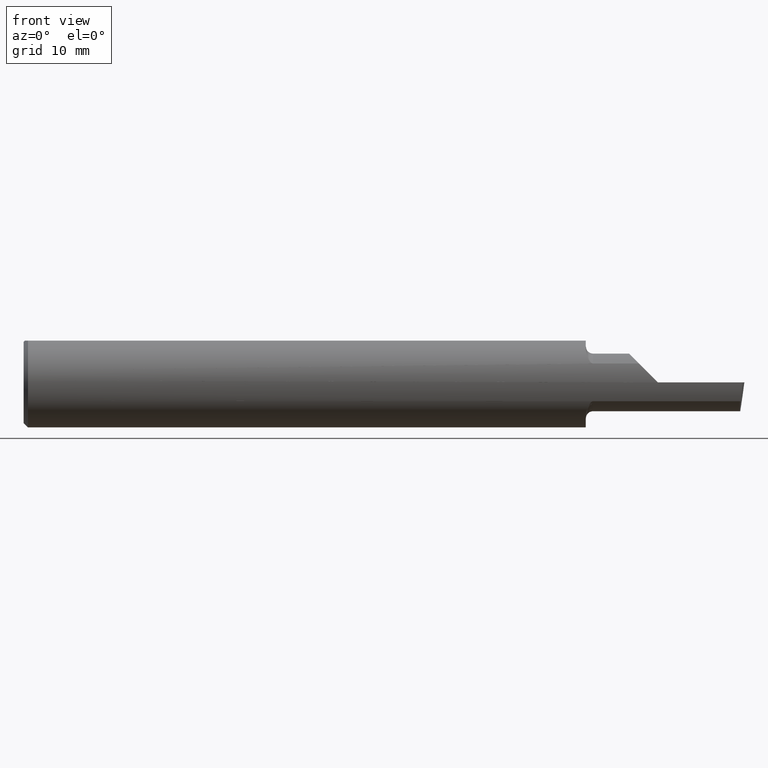
[diagram: clean part render]
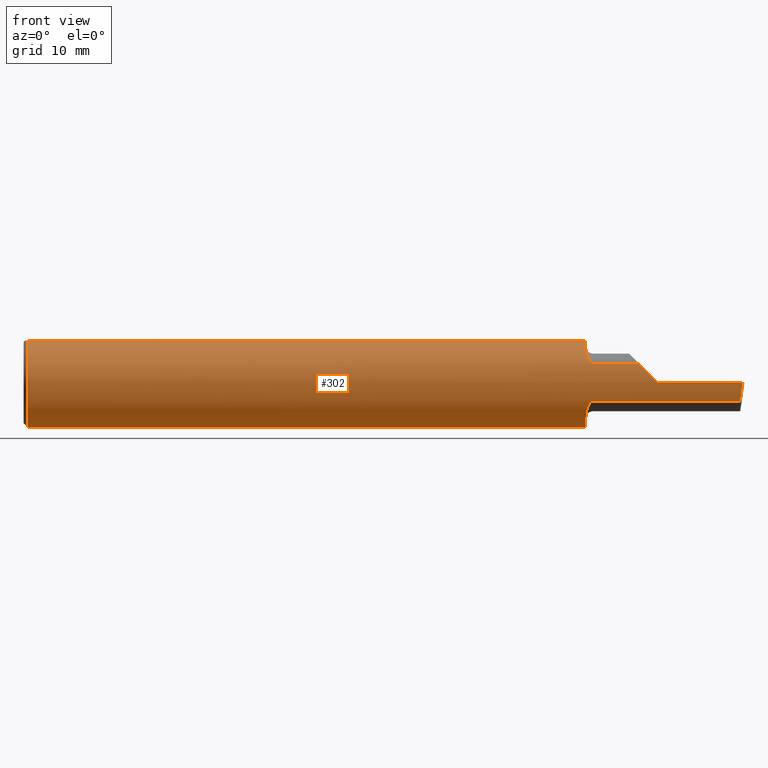
[diagram: same view with one face highlighted and labeled with its STEP entity id]
A machine part, front view. The second image highlights one B-rep face of the part: STEP entity #302.
In plain terms, the highlighted cylindrical surface (partial cylindrical patch) has radius 3.9649 mm, axis along (-1, -0, -0).
Its self-contained STEP definition (entity closure, byte-faithful):
#1 = CARTESIAN_POINT ( 'NONE',  ( 49.53000000000000114, -2.519138184568832983, 3.061811883615197072 ) ) ;
#6 = CARTESIAN_POINT ( 'NONE',  ( 50.12273214518531006, -3.599887049924846316, -1.661794942640280492 ) ) ;
#12 = ORIENTED_EDGE ( 'NONE', *, *, #416, .T. ) ;
#17 = DIRECTION ( 'NONE',  ( -1.000000000000000000, -0.000000000000000000, -0.000000000000000000 ) ) ;
#18 = CARTESIAN_POINT ( 'NONE',  ( 63.50000000000000000, 0.000000000000000000, 0.000000000000000000 ) ) ;
#20 = ORIENTED_EDGE ( 'NONE', *, *, #677, .T. ) ;
#25 = VERTEX_POINT ( 'NONE', #723 ) ;
#33 = AXIS2_PLACEMENT_3D ( 'NONE', #18, #707, #413 ) ;
#35 = CARTESIAN_POINT ( 'NONE',  ( 49.53000000000000114, 0.000000000000000000, 0.000000000000000000 ) ) ;
#36 = ORIENTED_EDGE ( 'NONE', *, *, #382, .F. ) ;
#40 = CARTESIAN_POINT ( 'NONE',  ( 53.08599999999999142, -3.599887049924355154, -1.661794942640913098 ) ) ;
#45 = LINE ( 'NONE', #40, #854 ) ;
#54 = CARTESIAN_POINT ( 'NONE',  ( 55.88000000000000256, -3.964939999999999465, -8.673617379884035472E-16 ) ) ;
#71 = CARTESIAN_POINT ( 'NONE',  ( 49.98245480245961403, -3.560155007699746577, 1.745585502201546735 ) ) ;
#76 = DIRECTION ( 'NONE',  ( 0.000000000000000000, 0.000000000000000000, -1.000000000000000000 ) ) ;
#83 = CARTESIAN_POINT ( 'NONE',  ( 50.16499999999999204, -3.599887049924355154, -1.661794942640913098 ) ) ;
#84 = AXIS2_PLACEMENT_3D ( 'NONE', #35, #963, #1172 ) ;
#86 = CARTESIAN_POINT ( 'NONE',  ( 0.3809999999999924558, 0.000000000000000000, 0.000000000000000000 ) ) ;
#103 = CARTESIAN_POINT ( 'NONE',  ( 49.75048060739424471, -3.373116484278351646, -2.089258773282957726 ) ) ;
#111 = CARTESIAN_POINT ( 'NONE',  ( 49.86080737346492953, -3.483507757590342369, -1.895116055831528090 ) ) ;
#116 = CARTESIAN_POINT ( 'NONE',  ( 63.50000000000000000, -1.462034237629201039, 3.685539999999999150 ) ) ;
#117 = CARTESIAN_POINT ( 'NONE',  ( 49.53000000000000114, -1.462034237629201483, 3.685539999999999150 ) ) ;
#136 = VERTEX_POINT ( 'NONE', #817 ) ;
#138 = LINE ( 'NONE', #628, #437 ) ;
#156 = EDGE_CURVE ( 'NONE', #687, #511, #853, .T. ) ;
#178 = DIRECTION ( 'NONE',  ( 0.000000000000000000, 0.000000000000000000, -1.000000000000000000 ) ) ;
#185 = CARTESIAN_POINT ( 'NONE',  ( 49.61278457167212252, -3.097160976341655214, 2.480706191382079595 ) ) ;
#196 = CARTESIAN_POINT ( 'NONE',  ( 49.98331072668533182, -3.560555847044618361, -1.744768704123047742 ) ) ;
#200 = CARTESIAN_POINT ( 'NONE',  ( 54.22074505735906769, -3.599887049924353821, 1.661794942640917094 ) ) ;
#212 = AXIS2_PLACEMENT_3D ( 'NONE', #86, #1034, #76 ) ;
#213 = CARTESIAN_POINT ( 'NONE',  ( 63.34721324168081225, -3.964939999999998577, -1.734723475976807094E-15 ) ) ;
#235 = CARTESIAN_POINT ( 'NONE',  ( 54.22074505735906769, -3.599887049924353821, 1.661794942640917094 ) ) ;
#254 = CARTESIAN_POINT ( 'NONE',  ( 54.74300171423059425, -3.840973355998292149, 1.139538285769383430 ) ) ;
#264 = LINE ( 'NONE', #862, #893 ) ;
#266 = VERTEX_POINT ( 'NONE', #387 ) ;
#282 = CARTESIAN_POINT ( 'NONE',  ( 49.53000000000000114, 0.000000000000000000, 0.000000000000000000 ) ) ;
#283 = CARTESIAN_POINT ( 'NONE',  ( 49.75039366075620961, -3.372877125526300812, 2.089606631779968193 ) ) ;
#295 = DIRECTION ( 'NONE',  ( -1.000000000000000000, -0.000000000000000000, -0.000000000000000000 ) ) ;
#298 = ORIENTED_EDGE ( 'NONE', *, *, #666, .T. ) ;
#302 = ADVANCED_FACE ( 'NONE', ( #319 ), #401, .T. ) ;
#316 =( BOUNDED_CURVE ( )  B_SPLINE_CURVE ( 3, ( #587, #961, #767, #213 ),
 .UNSPECIFIED., .F., .T. ) 
 B_SPLINE_CURVE_WITH_KNOTS ( ( 4, 4 ),
 ( 0.9266671109708576326, 1.359145557743733468 ),
 .UNSPECIFIED. ) 
 CURVE ( )  GEOMETRIC_REPRESENTATION_ITEM ( )  RATIONAL_B_SPLINE_CURVE ( ( 1.000000000000000000, 0.9844741726620815925, 0.9844741726620815925, 1.000000000000000000 ) ) 
 REPRESENTATION_ITEM ( '' )  );
#319 = FACE_OUTER_BOUND ( 'NONE', #875, .T. ) ;
#326 = ORIENTED_EDGE ( 'NONE', *, *, #1206, .F. ) ;
#333 = CIRCLE ( 'NONE', #593, 3.964939999999999465 ) ;
#358 = CARTESIAN_POINT ( 'NONE',  ( 63.34721324168081225, -3.964939999999998577, -1.734723475976807094E-15 ) ) ;
#361 = DIRECTION ( 'NONE',  ( -1.000000000000000000, -0.000000000000000000, -0.000000000000000000 ) ) ;
#371 = DIRECTION ( 'NONE',  ( -1.000000000000000000, -0.000000000000000000, -0.000000000000000000 ) ) ;
#376 = AXIS2_PLACEMENT_3D ( 'NONE', #872, #17, #784 ) ;
#382 = EDGE_CURVE ( 'NONE', #419, #699, #1068, .T. ) ;
#383 = CARTESIAN_POINT ( 'NONE',  ( 50.12244100483410847, -3.599887049924355598, 1.661794942640913098 ) ) ;
#387 = CARTESIAN_POINT ( 'NONE',  ( 0.3809999999999924558, -1.462034237629201039, 3.685539999999999150 ) ) ;
#391 = ORIENTED_EDGE ( 'NONE', *, *, #855, .T. ) ;
#401 = CYLINDRICAL_SURFACE ( 'NONE', #33, 3.964939999999999465 ) ;
#412 = CARTESIAN_POINT ( 'NONE',  ( 49.53000000000000824, -2.776463605467542894, -2.850094665743279521 ) ) ;
#413 = DIRECTION ( 'NONE',  ( 0.000000000000000000, 0.000000000000000000, 1.000000000000000000 ) ) ;
#416 = EDGE_CURVE ( 'NONE', #788, #810, #696, .T. ) ;
#419 = VERTEX_POINT ( 'NONE', #117 ) ;
#430 = VERTEX_POINT ( 'NONE', #54 ) ;
#432 = ORIENTED_EDGE ( 'NONE', *, *, #721, .T. ) ;
#437 = VECTOR ( 'NONE', #1003, 1000.000000000000000 ) ;
#449 = ORIENTED_EDGE ( 'NONE', *, *, #796, .T. ) ;
#458 = EDGE_CURVE ( 'NONE', #25, #621, #45, .T. ) ;
#463 = CARTESIAN_POINT ( 'NONE',  ( 49.58234523350259337, -2.993776095290412442, 2.604749827684863739 ) ) ;
#478 = VECTOR ( 'NONE', #295, 1000.000000000000000 ) ;
#510 = ORIENTED_EDGE ( 'NONE', *, *, #458, .F. ) ;
#511 = VERTEX_POINT ( 'NONE', #533 ) ;
#533 = CARTESIAN_POINT ( 'NONE',  ( 0.3809999999999924558, 1.462034237629201039, 3.685539999999999150 ) ) ;
#541 = LINE ( 'NONE', #1112, #838 ) ;
#555 = EDGE_CURVE ( 'NONE', #511, #136, #541, .T. ) ;
#557 = DIRECTION ( 'NONE',  ( 0.000000000000000000, 0.000000000000000000, -1.000000000000000000 ) ) ;
#576 = CARTESIAN_POINT ( 'NONE',  ( 49.53000000000000114, -2.519138184568832983, 3.061811883615197072 ) ) ;
#587 = CARTESIAN_POINT ( 'NONE',  ( 63.15280151554064503, -3.599887049924355598, -1.661794942640913542 ) ) ;
#593 = AXIS2_PLACEMENT_3D ( 'NONE', #1021, #850, #557 ) ;
#595 = CARTESIAN_POINT ( 'NONE',  ( 55.88000000000000256, -3.964939186418879213, 0.002539999999978843903 ) ) ;
#604 = VERTEX_POINT ( 'NONE', #755 ) ;
#605 = CARTESIAN_POINT ( 'NONE',  ( 49.56986463659906406, -3.000605534502819527, -2.611659286570838567 ) ) ;
#608 = ORIENTED_EDGE ( 'NONE', *, *, #156, .T. ) ;
#621 = VERTEX_POINT ( 'NONE', #83 ) ;
#628 = CARTESIAN_POINT ( 'NONE',  ( 53.08599999999999142, -3.599887049924355154, 1.661794942640912653 ) ) ;
#644 = DIRECTION ( 'NONE',  ( 1.000000000000000000, 0.000000000000000000, 0.000000000000000000 ) ) ;
#655 = CIRCLE ( 'NONE', #754, 3.964939999999999465 ) ;
#666 = EDGE_CURVE ( 'NONE', #1229, #430, #264, .T. ) ;
#676 = CARTESIAN_POINT ( 'NONE',  ( 50.08223186210840083, -3.593202679785877152, -1.676360523546626569 ) ) ;
#677 = EDGE_CURVE ( 'NONE', #735, #699, #1123, .T. ) ;
#683 = CARTESIAN_POINT ( 'NONE',  ( 50.16499999999999204, -3.599887049924355154, 1.661794942640912653 ) ) ;
#687 = VERTEX_POINT ( 'NONE', #953 ) ;
#694 = ORIENTED_EDGE ( 'NONE', *, *, #1023, .F. ) ;
#696 =( BOUNDED_CURVE ( )  B_SPLINE_CURVE ( 3, ( #595, #971, #254, #235 ),
 .UNSPECIFIED., .F., .F. ) 
 B_SPLINE_CURVE_WITH_KNOTS ( ( 4, 4 ),
 ( 4.713029595418891660, 5.144867427157565842 ),
 .UNSPECIFIED. ) 
 CURVE ( )  GEOMETRIC_REPRESENTATION_ITEM ( )  RATIONAL_B_SPLINE_CURVE ( ( 1.000000000000000000, 0.9845199556095911575, 0.9845199556095911575, 1.000000000000000000 ) ) 
 REPRESENTATION_ITEM ( '' )  );
#699 = VERTEX_POINT ( 'NONE', #1 ) ;
#707 = DIRECTION ( 'NONE',  ( -1.000000000000000000, -0.000000000000000000, -0.000000000000000000 ) ) ;
#721 = EDGE_CURVE ( 'NONE', #266, #687, #333, .T. ) ;
#723 = CARTESIAN_POINT ( 'NONE',  ( 63.15280151554064503, -3.599887049924355598, -1.661794942640913542 ) ) ;
#729 = ORIENTED_EDGE ( 'NONE', *, *, #555, .T. ) ;
#735 = VERTEX_POINT ( 'NONE', #683 ) ;
#748 = CARTESIAN_POINT ( 'NONE',  ( 49.54086488926296283, -2.769437744535205415, 2.842117441750147133 ) ) ;
#754 = AXIS2_PLACEMENT_3D ( 'NONE', #282, #1236, #178 ) ;
#755 = CARTESIAN_POINT ( 'NONE',  ( 49.53000000000000114, -2.519138184568832983, -3.061811883615197072 ) ) ;
#756 = EDGE_CURVE ( 'NONE', #419, #266, #779, .T. ) ;
#762 = EDGE_CURVE ( 'NONE', #25, #1229, #316, .T. ) ;
#767 = CARTESIAN_POINT ( 'NONE',  ( 63.27647904615622565, -3.964939999999999465, -0.5760837926561040989 ) ) ;
#779 = LINE ( 'NONE', #116, #478 ) ;
#784 = DIRECTION ( 'NONE',  ( 0.000000000000000000, 0.000000000000000000, 1.000000000000000000 ) ) ;
#788 = VERTEX_POINT ( 'NONE', #1051 ) ;
#796 = EDGE_CURVE ( 'NONE', #604, #621, #814, .T. ) ;
#810 = VERTEX_POINT ( 'NONE', #200 ) ;
#814 = B_SPLINE_CURVE_WITH_KNOTS ( 'NONE', 3,
 ( #1157, #412, #605, #983, #103, #111, #970, #196, #1055, #676, #6, #1072 ),
 .UNSPECIFIED., .F., .F.,
 ( 4, 2, 2, 2, 2, 4 ),
 ( 0.000000000000000000, 0.0009854161110805861618, 0.001478124166620876315, 0.001724478194391021067, 0.001847655208276093768, 0.001970832222161166252 ),
 .UNSPECIFIED. ) ;
#816 = CIRCLE ( 'NONE', #376, 3.964939999999999465 ) ;
#817 = CARTESIAN_POINT ( 'NONE',  ( 49.53000000000000114, 1.462034237629201039, 3.685539999999999150 ) ) ;
#838 = VECTOR ( 'NONE', #644, 1000.000000000000000 ) ;
#850 = DIRECTION ( 'NONE',  ( 1.000000000000000000, -0.000000000000000000, -0.000000000000000000 ) ) ;
#853 = CIRCLE ( 'NONE', #212, 3.964939999999999465 ) ;
#854 = VECTOR ( 'NONE', #361, 1000.000000000000000 ) ;
#855 = EDGE_CURVE ( 'NONE', #430, #788, #816, .T. ) ;
#862 = CARTESIAN_POINT ( 'NONE',  ( 63.50000000000000000, -3.964939999999998577, -8.673617379884035472E-16 ) ) ;
#872 = CARTESIAN_POINT ( 'NONE',  ( 55.88000000000000256, 0.000000000000000000, 0.000000000000000000 ) ) ;
#875 = EDGE_LOOP ( 'NONE', ( #510, #1065, #298, #391, #12, #694, #20, #36, #1113, #432, #608, #729, #326, #449 ) ) ;
#893 = VECTOR ( 'NONE', #371, 1000.000000000000000 ) ;
#936 = CARTESIAN_POINT ( 'NONE',  ( 50.16499999999999204, -3.599887049924355154, 1.661794942640912653 ) ) ;
#953 = CARTESIAN_POINT ( 'NONE',  ( 0.3809999999999924558, 0.000000000000000000, -3.964939999999999465 ) ) ;
#961 = CARTESIAN_POINT ( 'NONE',  ( 63.21065313572310629, -3.841336638864745190, -1.138751319066781731 ) ) ;
#963 = DIRECTION ( 'NONE',  ( 1.000000000000000000, 0.000000000000000000, 0.000000000000000000 ) ) ;
#970 = CARTESIAN_POINT ( 'NONE',  ( 49.90270401922562371, -3.517563494622021114, -1.830738248287720360 ) ) ;
#971 = CARTESIAN_POINT ( 'NONE',  ( 55.30478309583587304, -3.964570693771735765, 0.5777569041641154035 ) ) ;
#983 = CARTESIAN_POINT ( 'NONE',  ( 49.69735470549298384, -3.287133544512902628, -2.222929241776084641 ) ) ;
#1003 = DIRECTION ( 'NONE',  ( 1.000000000000000000, 0.000000000000000000, 0.000000000000000000 ) ) ;
#1021 = CARTESIAN_POINT ( 'NONE',  ( 0.3809999999999924558, 0.000000000000000000, 0.000000000000000000 ) ) ;
#1023 = EDGE_CURVE ( 'NONE', #735, #810, #138, .T. ) ;
#1026 = CARTESIAN_POINT ( 'NONE',  ( 49.69726499476740145, -3.286836667701075854, 2.223289014318798440 ) ) ;
#1032 = CARTESIAN_POINT ( 'NONE',  ( 49.53000000000000114, -2.647704699856521238, 2.956032420268234429 ) ) ;
#1034 = DIRECTION ( 'NONE',  ( 1.000000000000000000, -0.000000000000000000, -0.000000000000000000 ) ) ;
#1042 = CARTESIAN_POINT ( 'NONE',  ( 49.90226220547248914, -3.517214224323104599, 1.831405522215773685 ) ) ;
#1051 = CARTESIAN_POINT ( 'NONE',  ( 55.88000000000000256, -3.964939186418879213, 0.002539999999978843903 ) ) ;
#1055 = CARTESIAN_POINT ( 'NONE',  ( 50.01266131581564878, -3.573289969088938811, -1.718397189166197103 ) ) ;
#1065 = ORIENTED_EDGE ( 'NONE', *, *, #762, .T. ) ;
#1068 = CIRCLE ( 'NONE', #84, 3.964939999999999465 ) ;
#1072 = CARTESIAN_POINT ( 'NONE',  ( 50.16499999999999204, -3.599887049924355154, -1.661794942640913098 ) ) ;
#1112 = CARTESIAN_POINT ( 'NONE',  ( 63.50000000000000000, 1.462034237629201039, 3.685539999999999150 ) ) ;
#1113 = ORIENTED_EDGE ( 'NONE', *, *, #756, .T. ) ;
#1123 = B_SPLINE_CURVE_WITH_KNOTS ( 'NONE', 3,
 ( #936, #383, #1231, #1141, #71, #1042, #1237, #283, #1026, #185, #463, #748, #1032, #576 ),
 .UNSPECIFIED., .F., .F.,
 ( 4, 2, 2, 2, 2, 2, 4 ),
 ( 0.000000000000000000, 0.0001252016961403283482, 0.0002504033922806566965, 0.0005008067845613125256, 0.001001613569122614426, 0.001502420353683916110, 0.002003227138245218010 ),
 .UNSPECIFIED. ) ;
#1141 = CARTESIAN_POINT ( 'NONE',  ( 50.01257322604089950, -3.573254725572614809, 1.718470549442532080 ) ) ;
#1157 = CARTESIAN_POINT ( 'NONE',  ( 49.53000000000000114, -2.519138184568832983, -3.061811883615197072 ) ) ;
#1172 = DIRECTION ( 'NONE',  ( 0.000000000000000000, 0.000000000000000000, -1.000000000000000000 ) ) ;
#1206 = EDGE_CURVE ( 'NONE', #604, #136, #655, .T. ) ;
#1229 = VERTEX_POINT ( 'NONE', #358 ) ;
#1231 = CARTESIAN_POINT ( 'NONE',  ( 50.08209333977406175, -3.593173028997538321, 1.676424154804801558 ) ) ;
#1236 = DIRECTION ( 'NONE',  ( 1.000000000000000000, 0.000000000000000000, 0.000000000000000000 ) ) ;
#1237 = CARTESIAN_POINT ( 'NONE',  ( 49.86013817098802292, -3.482913605042309069, 1.896197172601131742 ) ) ;